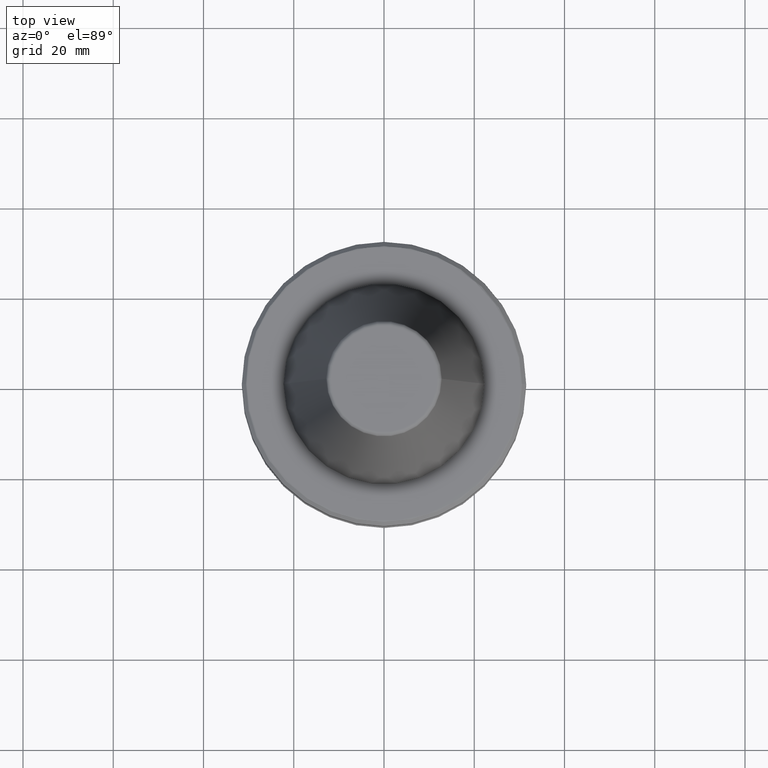
[diagram: clean part render]
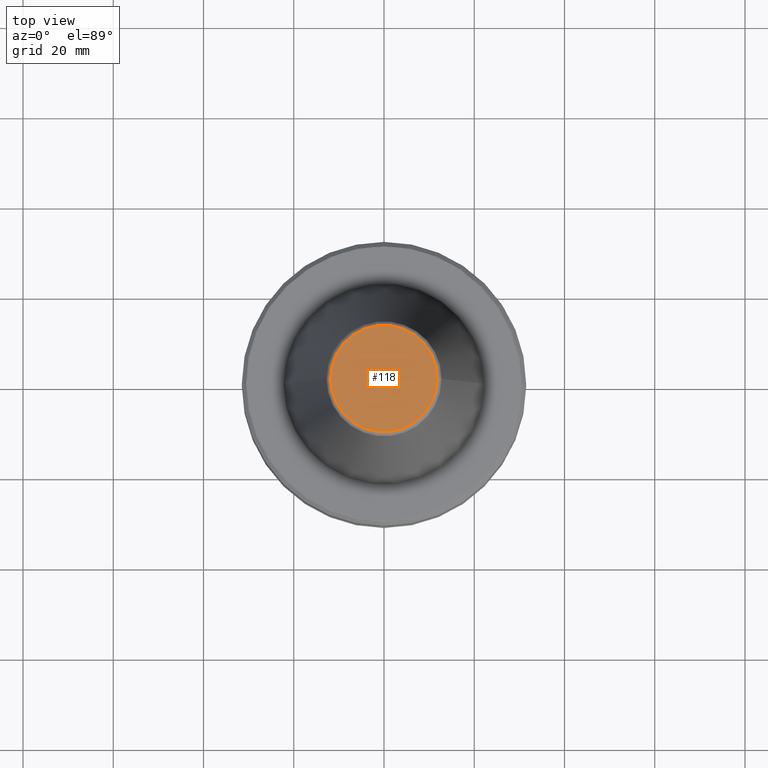
[diagram: same view with one face highlighted and labeled with its STEP entity id]
A machine part, top view. The second image highlights one B-rep face of the part: STEP entity #118.
In plain terms, the highlighted planar face has unit normal (0, -0, 1).
Its self-contained STEP definition (entity closure, byte-faithful):
#109 = ORIENTED_EDGE ( 'NONE', *, *, #674, .T. ) ;
#118 = ADVANCED_FACE ( 'NONE', ( #372 ), #1443, .T. ) ;
#264 = DIRECTION ( 'NONE',  ( 1.000000000000000000, 0.0000000000000000000, 0.0000000000000000000 ) ) ;
#372 = FACE_OUTER_BOUND ( 'NONE', #380, .T. ) ;
#380 = EDGE_LOOP ( 'NONE', ( #109, #471 ) ) ;
#382 = DIRECTION ( 'NONE',  ( -0.0000000000000000000, -0.0000000000000000000, 1.000000000000000000 ) ) ;
#471 = ORIENTED_EDGE ( 'NONE', *, *, #914, .T. ) ;
#607 = CIRCLE ( 'NONE', #920, 11.82266672057007100 ) ;
#674 = EDGE_CURVE ( 'NONE', #1329, #1250, #696, .T. ) ;
#696 = CIRCLE ( 'NONE', #1027, 11.82266672057007100 ) ;
#760 = DIRECTION ( 'NONE',  ( 0.0000000000000000000, -0.0000000000000000000, 1.000000000000000000 ) ) ;
#830 = CARTESIAN_POINT ( 'NONE',  ( 0.0000000000000000000, 0.0000000000000000000, 65.40000000000000600 ) ) ;
#914 = EDGE_CURVE ( 'NONE', #1250, #1329, #607, .T. ) ;
#920 = AXIS2_PLACEMENT_3D ( 'NONE', #830, #1180, #1266 ) ;
#929 = DIRECTION ( 'NONE',  ( 1.000000000000000000, 0.0000000000000000000, 0.0000000000000000000 ) ) ;
#1027 = AXIS2_PLACEMENT_3D ( 'NONE', #1121, #382, #264 ) ;
#1057 = CARTESIAN_POINT ( 'NONE',  ( 0.0000000000000000000, 0.0000000000000000000, 65.40000000000000600 ) ) ;
#1111 = CARTESIAN_POINT ( 'NONE',  ( 11.82266672057007100, 0.0000000000000000000, 65.40000000000000600 ) ) ;
#1121 = CARTESIAN_POINT ( 'NONE',  ( 0.0000000000000000000, 0.0000000000000000000, 65.40000000000000600 ) ) ;
#1180 = DIRECTION ( 'NONE',  ( -0.0000000000000000000, -0.0000000000000000000, 1.000000000000000000 ) ) ;
#1250 = VERTEX_POINT ( 'NONE', #1306 ) ;
#1266 = DIRECTION ( 'NONE',  ( 1.000000000000000000, 0.0000000000000000000, 0.0000000000000000000 ) ) ;
#1304 = AXIS2_PLACEMENT_3D ( 'NONE', #1057, #760, #929 ) ;
#1306 = CARTESIAN_POINT ( 'NONE',  ( -11.82266672057007100, 1.508450503654657300E-015, 65.40000000000000600 ) ) ;
#1329 = VERTEX_POINT ( 'NONE', #1111 ) ;
#1443 = PLANE ( 'NONE',  #1304 ) ;